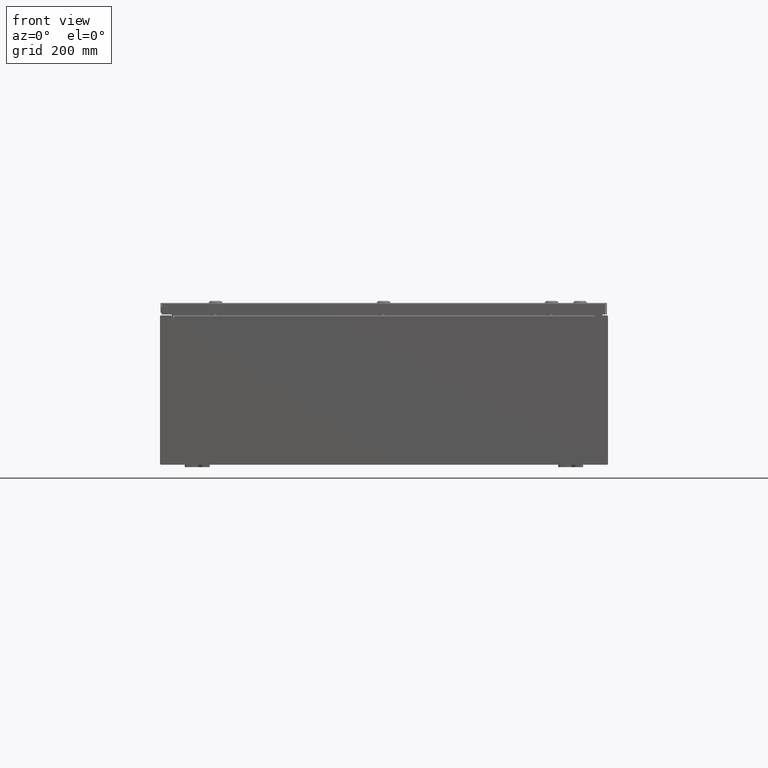
[diagram: clean part render]
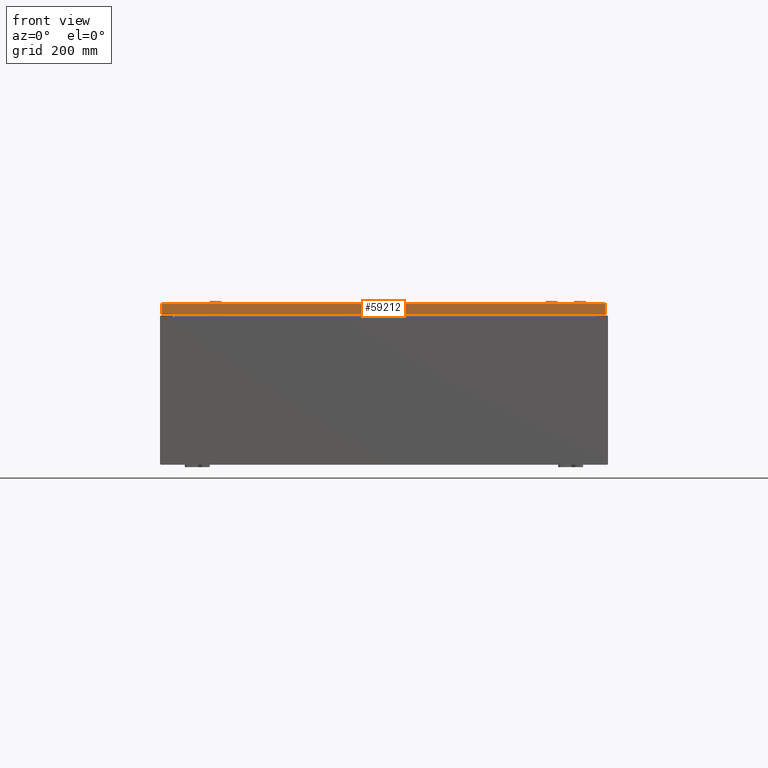
[diagram: same view with one face highlighted and labeled with its STEP entity id]
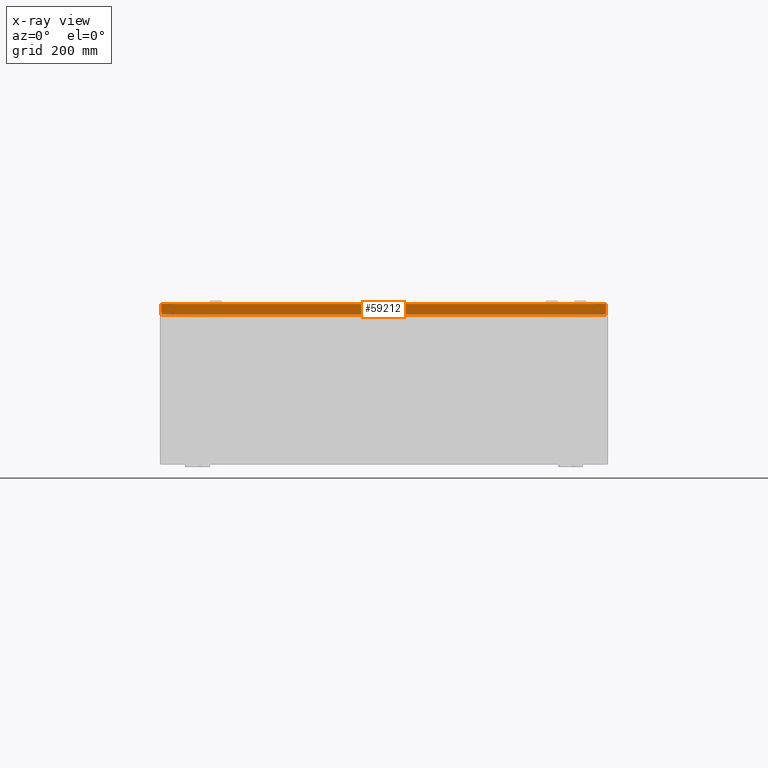
[diagram: x-ray of the same camera — body ghosted, the highlighted face saturated]
A machine part, front view. The second image highlights one B-rep face of the part: STEP entity #59212.
The next image is the same camera in x-ray: the body ghosted, the highlighted face saturated — about 0% of this face is hidden behind the body in this view.
In plain terms, the highlighted planar face has unit normal (-0, 1, -0).
Its self-contained STEP definition (entity closure, byte-faithful):
#376 = EDGE_CURVE ( 'NONE', #37221, #61749, #51968, .T. ) ;
#1417 = CARTESIAN_POINT ( 'NONE',  ( -17.84865786437627500, -20.93750000000000000, 1.063058979987147300E-013 ) ) ;
#8238 = VERTEX_POINT ( 'NONE', #57352 ) ;
#8512 = CARTESIAN_POINT ( 'NONE',  ( 17.84865786437626100, -20.93750000000000000, -0.08769999999999550400 ) ) ;
#8621 = LINE ( 'NONE', #63218, #50828 ) ;
#9302 = PLANE ( 'NONE',  #31599 ) ;
#10538 = LINE ( 'NONE', #50022, #65256 ) ;
#12412 = CARTESIAN_POINT ( 'NONE',  ( -17.84865786437627100, -20.93750000000000000, -0.08769999999999550400 ) ) ;
#18962 = EDGE_CURVE ( 'NONE', #37221, #8238, #59512, .T. ) ;
#19412 = ORIENTED_EDGE ( 'NONE', *, *, #18962, .T. ) ;
#20837 = DIRECTION ( 'NONE',  ( -0.0000000000000000000, -5.064839849203732200E-015, -1.000000000000000000 ) ) ;
#23826 = CARTESIAN_POINT ( 'NONE',  ( 17.84865786437626400, -20.93750000000000700, -0.9376999999999997600 ) ) ;
#23854 = VECTOR ( 'NONE', #46448, 39.37007874015748100 ) ;
#25289 = DIRECTION ( 'NONE',  ( 0.0000000000000000000, 5.064839849203732200E-015, 1.000000000000000000 ) ) ;
#31599 = AXIS2_PLACEMENT_3D ( 'NONE', #51628, #56977, #25289 ) ;
#33613 = DIRECTION ( 'NONE',  ( -1.000000000000000000, -8.758115402030108600E-047, 1.218385167906012900E-016 ) ) ;
#37221 = VERTEX_POINT ( 'NONE', #12412 ) ;
#38450 = DIRECTION ( 'NONE',  ( 0.0000000000000000000, -5.064839849203732200E-015, -1.000000000000000000 ) ) ;
#41877 = EDGE_LOOP ( 'NONE', ( #63178, #19412, #57903, #44128 ) ) ;
#44128 = ORIENTED_EDGE ( 'NONE', *, *, #61275, .F. ) ;
#46448 = DIRECTION ( 'NONE',  ( 1.000000000000000000, 6.170925750089155900E-031, -3.189293793798686700E-045 ) ) ;
#47042 = VECTOR ( 'NONE', #38450, 39.37007874015748100 ) ;
#50022 = CARTESIAN_POINT ( 'NONE',  ( 17.93749999999999600, -20.93750000000000700, -0.9376999999999997600 ) ) ;
#50828 = VECTOR ( 'NONE', #20837, 39.37007874015748100 ) ;
#51628 = CARTESIAN_POINT ( 'NONE',  ( 1.292037578924916800E-029, -20.93750000000000000, 1.063058979987147300E-013 ) ) ;
#51968 = LINE ( 'NONE', #55651, #23854 ) ;
#55651 = CARTESIAN_POINT ( 'NONE',  ( 17.93749999999999600, -20.93750000000000000, -0.08769999999999550400 ) ) ;
#56977 = DIRECTION ( 'NONE',  ( -6.170925750089155000E-031, 1.000000000000000000, -5.064839849203732200E-015 ) ) ;
#57352 = CARTESIAN_POINT ( 'NONE',  ( -17.84865786437627100, -20.93750000000000700, -0.9376999999999954300 ) ) ;
#57583 = EDGE_CURVE ( 'NONE', #58280, #8238, #10538, .T. ) ;
#57611 = FACE_OUTER_BOUND ( 'NONE', #41877, .T. ) ;
#57903 = ORIENTED_EDGE ( 'NONE', *, *, #57583, .F. ) ;
#58280 = VERTEX_POINT ( 'NONE', #23826 ) ;
#59212 = ADVANCED_FACE ( 'NONE', ( #57611 ), #9302, .F. ) ;
#59512 = LINE ( 'NONE', #1417, #47042 ) ;
#61275 = EDGE_CURVE ( 'NONE', #61749, #58280, #8621, .T. ) ;
#61749 = VERTEX_POINT ( 'NONE', #8512 ) ;
#63178 = ORIENTED_EDGE ( 'NONE', *, *, #376, .F. ) ;
#63218 = CARTESIAN_POINT ( 'NONE',  ( 17.84865786437626400, -20.93750000000000000, -0.07469999999999962800 ) ) ;
#65256 = VECTOR ( 'NONE', #33613, 39.37007874015748100 ) ;